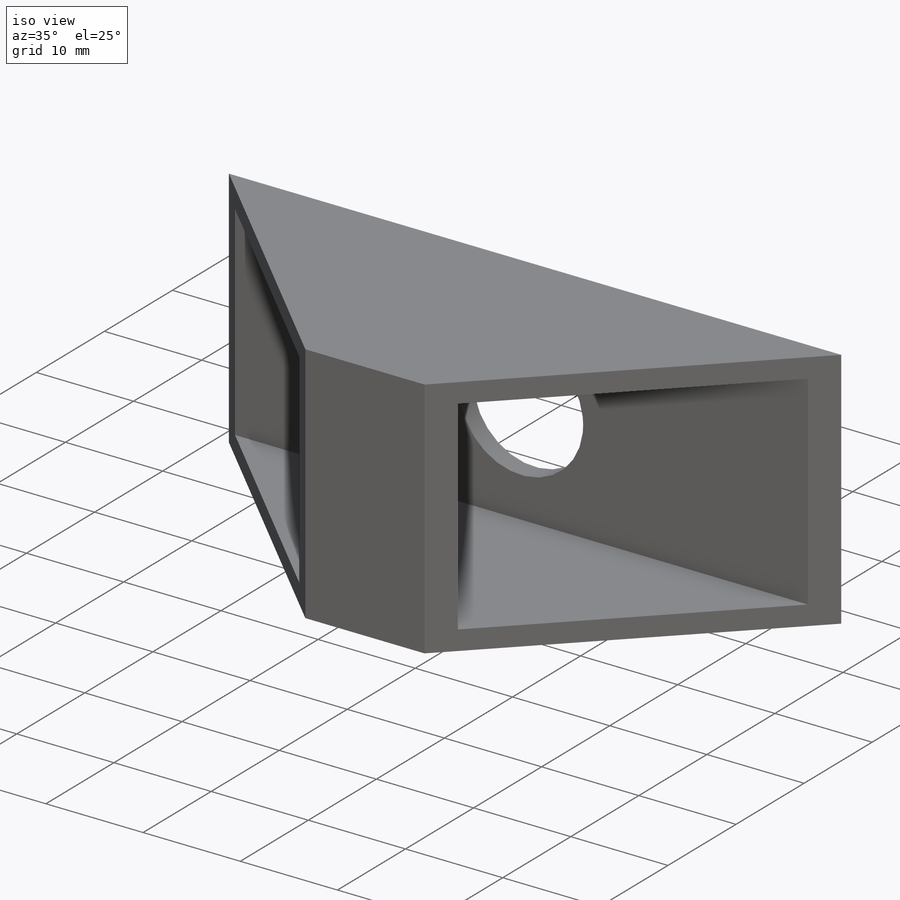
[diagram: iso view]
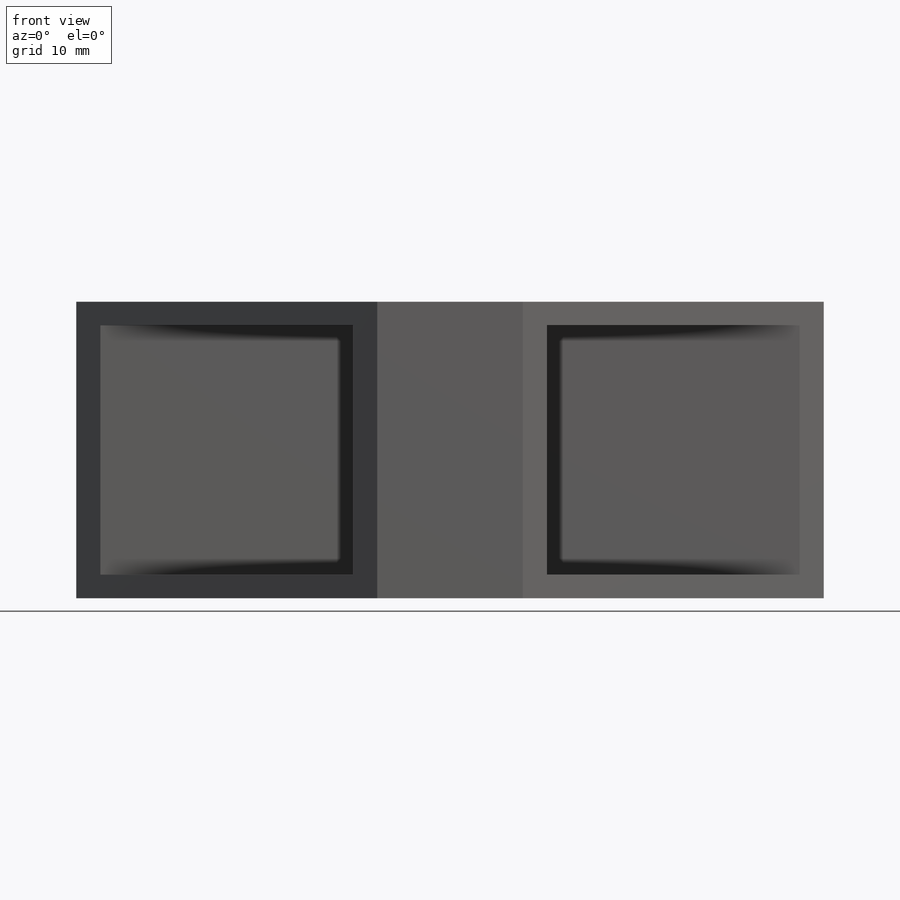
[diagram: front view]
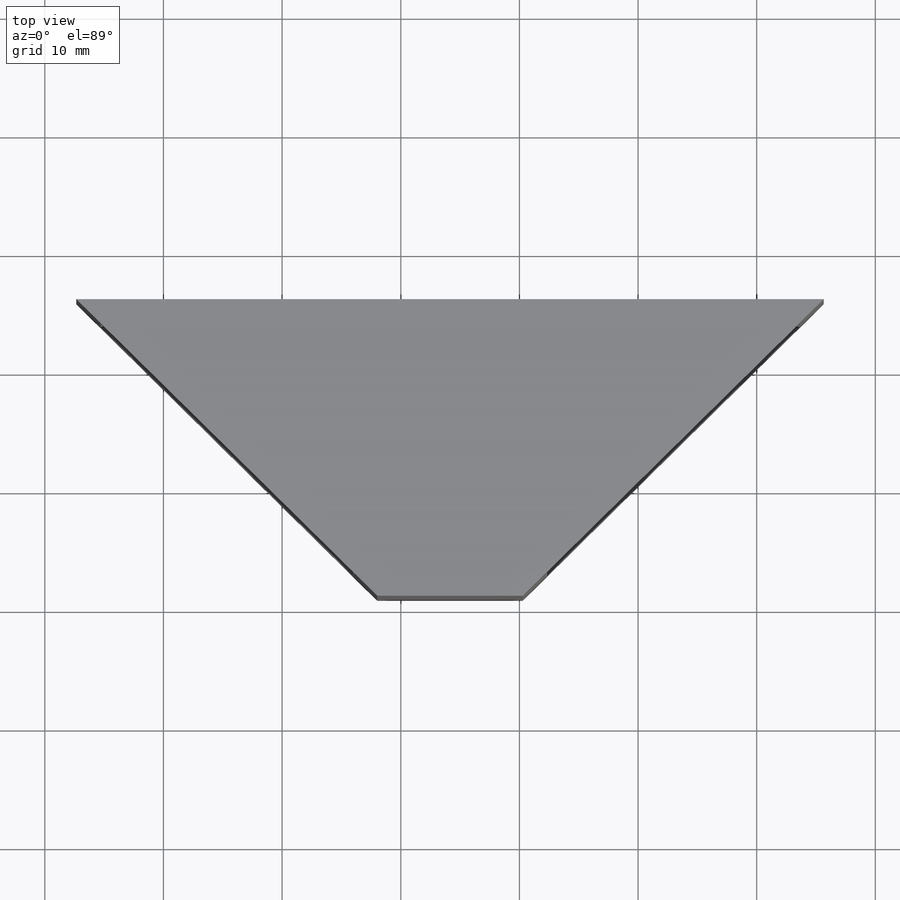
[diagram: top view]
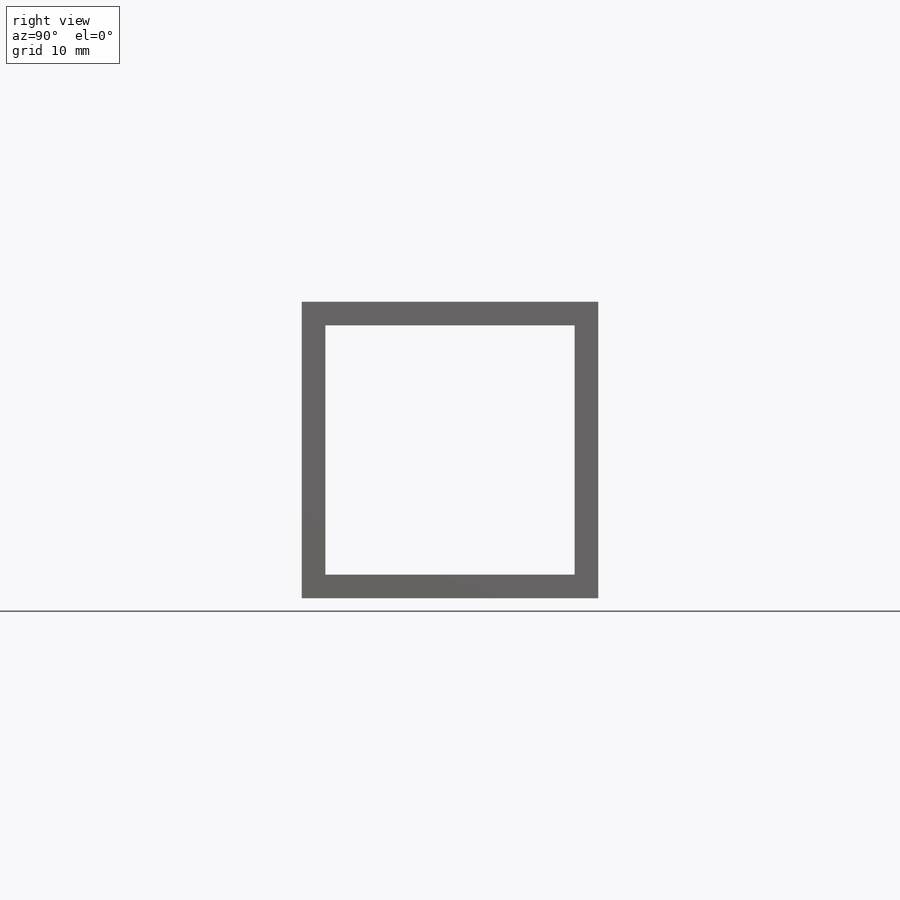
[diagram: right view]
SOLIDWORKS PART (.sldprt)
format: sldprt  version: not decoded by parser v0  size: 129,024 bytes
history: native  units: mm
features: sketch x2, material x1, extrude x1, shell x1, cut_extrude x1 (+13 scaffold rows collapsed)
feature tree (19):
  scaffold x13  (default folders/planes/origin — collapsed)
  material  "Material <not specified>"
  sketch  "Sketch1"  dims[c1.D1=63.0mm c1.D2=12.26mm c1.D3=63.0mm c2.D3=~29.567469deg c3.D3=25.0mm c3.D4=63.0mm c4.D4=~44.579133deg c4.D5=63.0mm c5.D5=~44.579133deg]
  extrude  "Boss-Extrude1"  Depth=25mm
  shell  "Shell1"  Thickness=2mm
  sketch  "Sketch2"  dims[D1=12.7mm]
  cut_extrude  "Cut-Extrude1"  Depth=10mm
decode coverage: 5 of 5 modeling features carry decoded parameters
note: ~ marks probable driven/reference dimensions
note: suppression state not decoded; provenance and decode notes live in map.json
